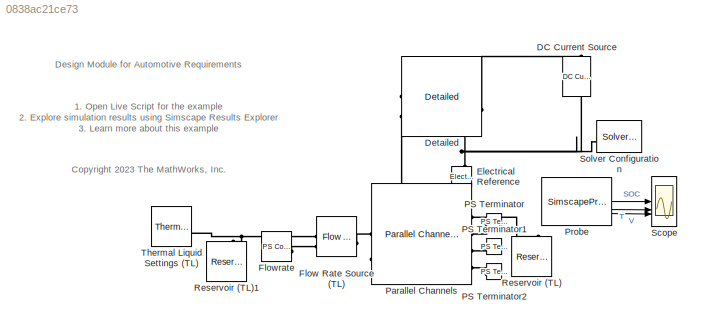
MODEL slx_0838ac21ce73
KIND model
CONFIG AbsTol = 1e-3
CONFIG EnableMultiTasking = off
CONFIG FixedStep = auto
CONFIG MaxStep = 1
CONFIG MinStep = auto
CONFIG PreLoadFcn = if exist('batteryLFP') & exist('Detailed')\n  % Do nothing\nelse\n    run('setBattModuleParameters');\nend\n
CONFIG RelTol = 1e-3
CONFIG SampleTimeConstraint = Unconstrained
CONFIG SolverName = daessc
CONFIG StartTime = 0.0
CONFIG StopTime = chargingParams.time
BLOCK [Reference] DC Current Source  REF=fl_lib/Electrical/Electrical Sources/DC Current Source
  NameLocation = left
  SourceBlock = fl_lib/Electrical/Electrical Sources/DC Current Source
  SourceType = DC Current Source
BLOCK [Reference] Detailed  REF=BattDetailedModuleLFP_lib/Detailed
  SourceBlock = BattDetailedModuleLFP_lib/Detailed
  SourceType = Detailed
BLOCK [Reference] Electrical Reference  REF=fl_lib/Electrical/Electrical Elements/Electrical Reference
  NameLocation = right
  SourceBlock = fl_lib/Electrical/Electrical Elements/Electrical Reference
  SourceType = Electrical Reference
BLOCK [Reference] Flow Rate Source (TL)  REF=fl_lib/Thermal Liquid/Sources/Flow Rate Source
(TL)
  SourceBlock = fl_lib/Thermal Liquid/Sources/Flow Rate Source\n(TL)
  SourceType = Flow Rate Source\n(TL)
BLOCK [Reference] Flowrate  REF=fl_lib/Physical Signals/Sources/PS Constant
  SourceBlock = fl_lib/Physical Signals/Sources/PS Constant
  SourceType = PS Constant
BLOCK [Reference] PS Terminator  REF=fl_lib/Physical Signals/Sinks/PS Terminator
  SourceBlock = fl_lib/Physical Signals/Sinks/PS Terminator
  SourceType = PS Terminator
BLOCK [Reference] PS Terminator1  REF=fl_lib/Physical Signals/Sinks/PS Terminator
  SourceBlock = fl_lib/Physical Signals/Sinks/PS Terminator
  SourceType = PS Terminator
BLOCK [Reference] PS Terminator2  REF=fl_lib/Physical Signals/Sinks/PS Terminator
  SourceBlock = fl_lib/Physical Signals/Sinks/PS Terminator
  SourceType = PS Terminator
BLOCK [Reference] Parallel Channels  REF=batt_lib/Thermal/Parallel Channels
  SourceBlock = batt_lib/Thermal/Parallel Channels
  SourceType = Parallel Channels
BLOCK [SimscapeProbe] Probe
  BoundBlock = 97
  Variables = {socCell, temperatureCell, vCell}
BLOCK [Reference] Reservoir (TL)  REF=fl_lib/Thermal Liquid/Elements/Reservoir (TL)
  NameLocation = right
  SourceBlock = fl_lib/Thermal Liquid/Elements/Reservoir (TL)
  SourceType = Reservoir (TL)
BLOCK [Reference] Reservoir (TL)1  REF=fl_lib/Thermal Liquid/Elements/Reservoir (TL)
  NameLocation = right
  SourceBlock = fl_lib/Thermal Liquid/Elements/Reservoir (TL)
  SourceType = Reservoir (TL)
BLOCK [Scope] Scope
  Floating = off
  NumInputPorts = 3
  ScopeSpecificationString = Simulink.scopes.TimeScopeBlockCfg('CurrentConfiguration', extmgr.ConfigurationSet(extmgr.Configuration('Core','General UI',true),extmgr.Configuration('Core','Source UI',true),extmgr.Configuration('Sources','WiredSimulink',true),extmgr.Configuration('Visuals','Time Domain',true,'SerializedDisplays',{struct('MinYLimReal','0.99604','MaxYLimReal','1.03563','YLabelReal','','MinYLimMag','0.99604','MaxYL...<+3784ch>
BLOCK [Reference] Solver Configuration  REF=nesl_utility/Solver
Configuration
  NameLocation = top
  SourceBlock = nesl_utility/Solver\nConfiguration
  SourceType = Solver\nConfiguration
BLOCK [Reference] Thermal Liquid Settings (TL)  REF=fl_lib/Thermal Liquid/Utilities/Thermal Liquid
Settings (TL)
  SourceBlock = fl_lib/Thermal Liquid/Utilities/Thermal Liquid\nSettings (TL)
  SourceType = Thermal Liquid\nSettings (TL)
ANNOTATION (root): 1. Open Live Script for the example 2. Explore simulation results using Simscape Results Explorer 3. Learn more about this example
ANNOTATION (root): Design Module for Automotive Requirements
ANNOTATION (root): <copyright redacted>
LINE Probe:1 -> Scope:1
LINE Probe:2 -> Scope:2
LINE Probe:3 -> Scope:3
PNET net1: DC Current Source:LConn1 -- Detailed:RConn1 -- Electrical Reference:LConn1 -- Solver Configuration:RConn1
PLINE DC Current Source:RConn1 -- Detailed:LConn1
PLINE Detailed:RConn2 -- Parallel Channels:LConn2
PNET net2: Flow Rate Source (TL):LConn1 -- Reservoir (TL)1:LConn1 -- Thermal Liquid Settings (TL):RConn1
PLINE Flow Rate Source (TL):LConn2 -- Flowrate:RConn1
PLINE Flow Rate Source (TL):RConn1 -- Parallel Channels:LConn1
PLINE PS Terminator1:LConn1 -- Parallel Channels:RConn3
PLINE PS Terminator2:LConn1 -- Parallel Channels:RConn4
PLINE PS Terminator:LConn1 -- Parallel Channels:RConn2
PLINE Parallel Channels:RConn1 -- Reservoir (TL):LConn1
note: PNET lines group multi-terminal physical nets as a canonical sorted terminal list (undirected conserving connections); 2-terminal nets keep the pairwise PLINE form
